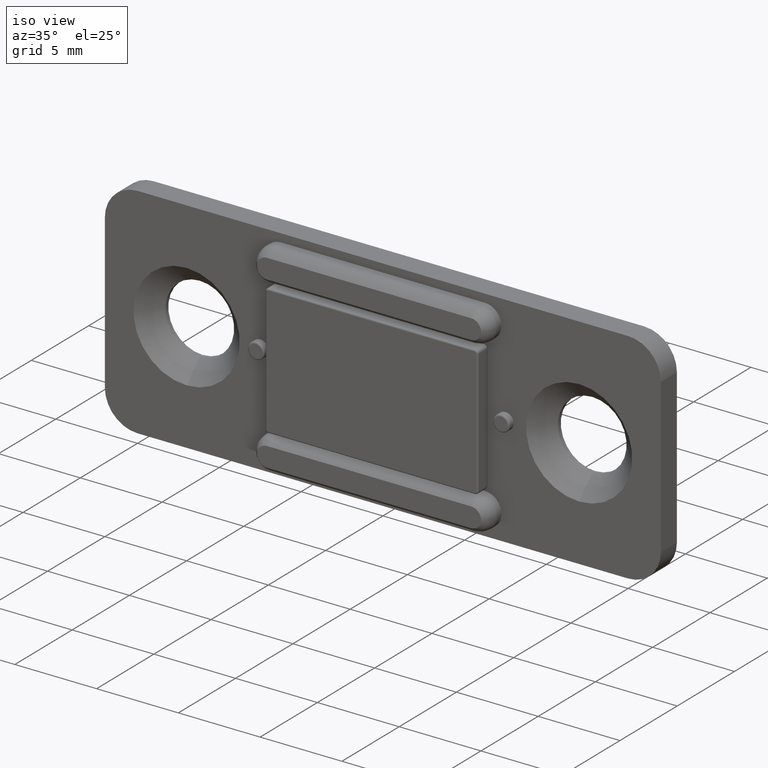
[diagram: clean part render]
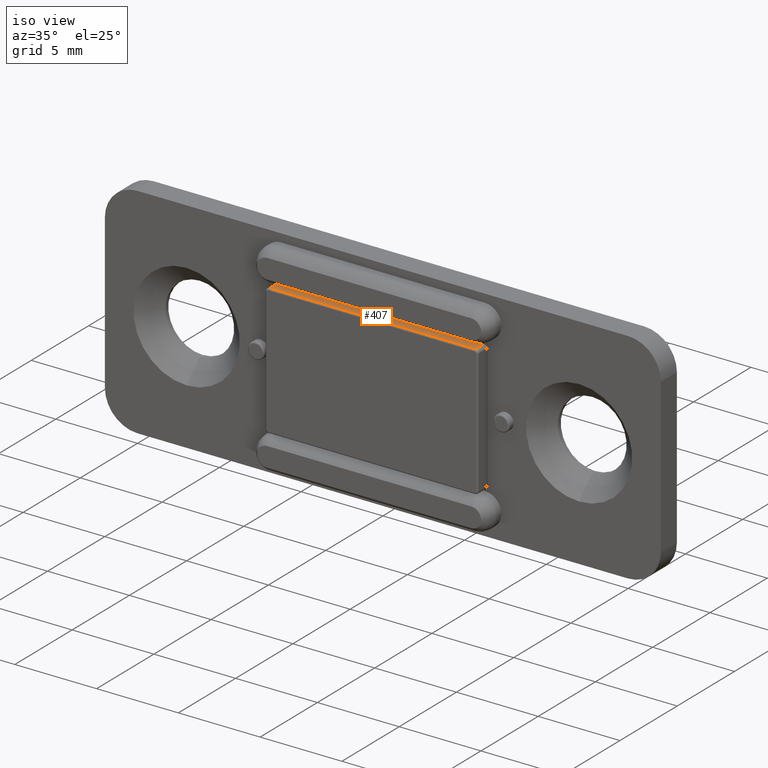
[diagram: same view with one face highlighted and labeled with its STEP entity id]
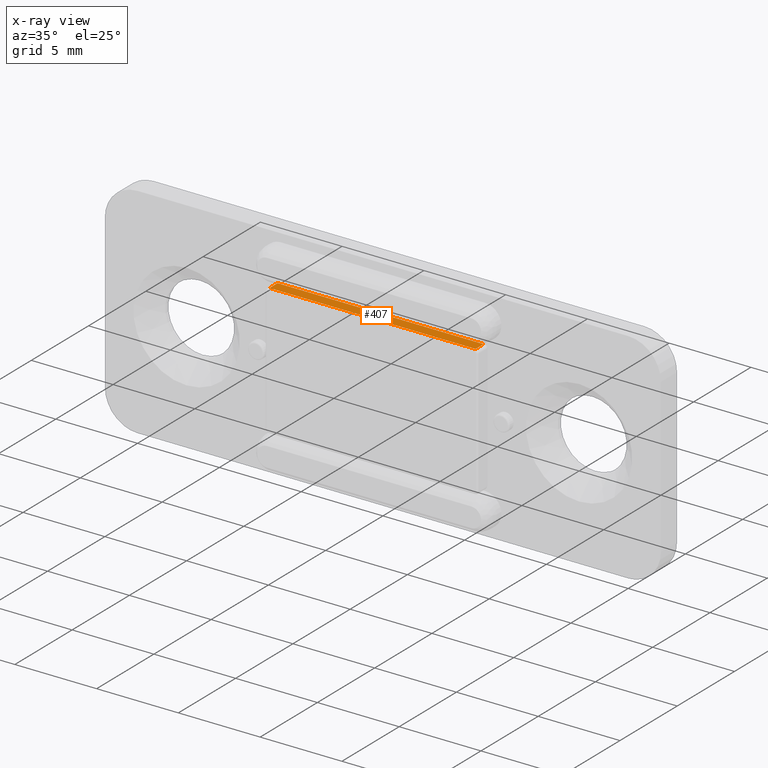
[diagram: x-ray of the same camera — body ghosted, the highlighted face saturated]
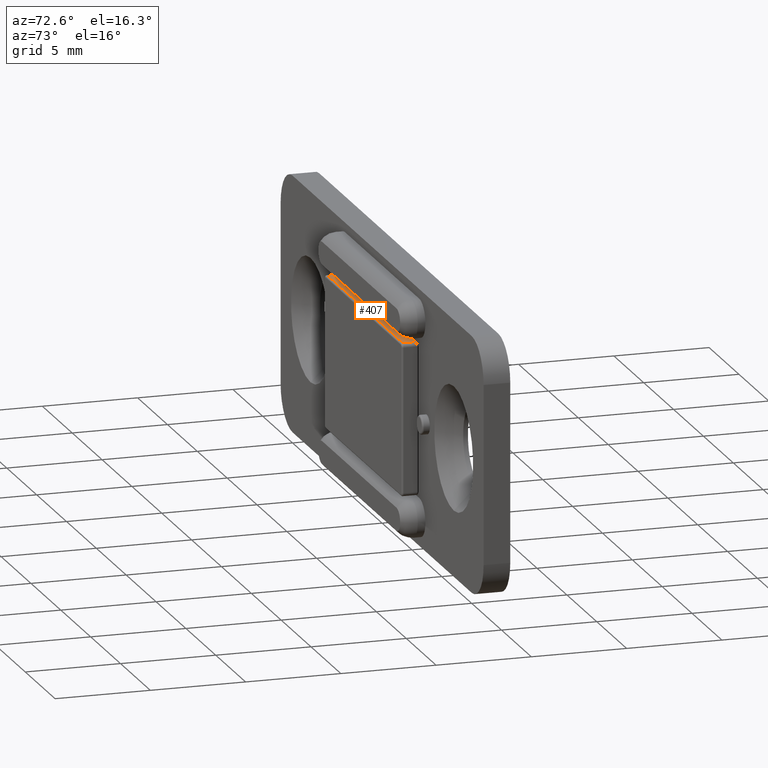
[diagram: same view with one face highlighted and labeled with its STEP entity id]
A machine part, iso view. The second image highlights one B-rep face of the part: STEP entity #407.
The next image is the same camera in x-ray: the body ghosted, the highlighted face saturated — about 0% of this face is hidden behind the body in this view.
A second angle (auxiliary view) of the same face is appended — the face is thin or edge-on in the first view.
In plain terms, the highlighted planar face has unit normal (0, 0, -1).
Its self-contained STEP definition (entity closure, byte-faithful):
#9 = LINE ( 'NONE', #803, #1271 ) ;
#13 = LINE ( 'NONE', #18, #1274 ) ;
#18 = CARTESIAN_POINT ( 'NONE',  ( -6.300000000000070000, -1000.100000000000000, 4.000000000000000000 ) ) ;
#22 = VECTOR ( 'NONE', #1958, 1000.000000000000000 ) ;
#28 = ORIENTED_EDGE ( 'NONE', *, *, #143, .F. ) ;
#134 = VECTOR ( 'NONE', #2060, 1000.000000000000000 ) ;
#143 = EDGE_CURVE ( 'NONE', #1822, #785, #13, .T. ) ;
#222 = CARTESIAN_POINT ( 'NONE',  ( -6.300000000000070000, -0.1999999999999780000, 4.000000000000000000 ) ) ;
#246 = AXIS2_PLACEMENT_3D ( 'NONE', #920, #2113, #1069 ) ;
#295 = DIRECTION ( 'NONE',  ( 0.0000000000000000000, 1.000000000000000000, 0.0000000000000000000 ) ) ;
#323 = FACE_OUTER_BOUND ( 'NONE', #811, .T. ) ;
#407 = ADVANCED_FACE ( 'NONE', ( #323 ), #1581, .F. ) ;
#617 = CARTESIAN_POINT ( 'NONE',  ( 6.299999999999999800, -0.9000000000000000200, 4.000000000000000000 ) ) ;
#761 = VERTEX_POINT ( 'NONE', #1032 ) ;
#785 = VERTEX_POINT ( 'NONE', #222 ) ;
#803 = CARTESIAN_POINT ( 'NONE',  ( 6.299999999999999800, -1000.100000000000000, 4.000000000000000000 ) ) ;
#811 = EDGE_LOOP ( 'NONE', ( #1751, #1088, #28, #1928 ) ) ;
#920 = CARTESIAN_POINT ( 'NONE',  ( 6.299999999999999800, -1000.100000000000000, 4.000000000000000000 ) ) ;
#1015 = EDGE_CURVE ( 'NONE', #1899, #761, #9, .T. ) ;
#1032 = CARTESIAN_POINT ( 'NONE',  ( 6.299999999999999800, -0.1999999999999780000, 4.000000000000000000 ) ) ;
#1069 = DIRECTION ( 'NONE',  ( -1.000000000000000000, 0.0000000000000000000, 0.0000000000000000000 ) ) ;
#1088 = ORIENTED_EDGE ( 'NONE', *, *, #1125, .T. ) ;
#1125 = EDGE_CURVE ( 'NONE', #761, #785, #1927, .T. ) ;
#1154 = DIRECTION ( 'NONE',  ( 0.0000000000000000000, 1.000000000000000000, 0.0000000000000000000 ) ) ;
#1188 = CARTESIAN_POINT ( 'NONE',  ( 6.299999999999999800, -0.1999999999999780000, 4.000000000000000000 ) ) ;
#1271 = VECTOR ( 'NONE', #295, 1000.000000000000000 ) ;
#1274 = VECTOR ( 'NONE', #1154, 1000.000000000000000 ) ;
#1581 = PLANE ( 'NONE',  #246 ) ;
#1589 = CARTESIAN_POINT ( 'NONE',  ( 6.299999999999999800, -0.9000000000000120100, 4.000000000000000000 ) ) ;
#1751 = ORIENTED_EDGE ( 'NONE', *, *, #1015, .T. ) ;
#1822 = VERTEX_POINT ( 'NONE', #2000 ) ;
#1852 = LINE ( 'NONE', #617, #22 ) ;
#1899 = VERTEX_POINT ( 'NONE', #1589 ) ;
#1927 = LINE ( 'NONE', #1188, #134 ) ;
#1928 = ORIENTED_EDGE ( 'NONE', *, *, #2062, .T. ) ;
#1958 = DIRECTION ( 'NONE',  ( 1.000000000000000000, -0.0000000000000000000, -0.0000000000000000000 ) ) ;
#2000 = CARTESIAN_POINT ( 'NONE',  ( -6.300000000000070000, -0.9000000000000120100, 4.000000000000000000 ) ) ;
#2060 = DIRECTION ( 'NONE',  ( -1.000000000000000000, 0.0000000000000000000, 0.0000000000000000000 ) ) ;
#2062 = EDGE_CURVE ( 'NONE', #1822, #1899, #1852, .T. ) ;
#2113 = DIRECTION ( 'NONE',  ( 0.0000000000000000000, 0.0000000000000000000, -1.000000000000000000 ) ) ;